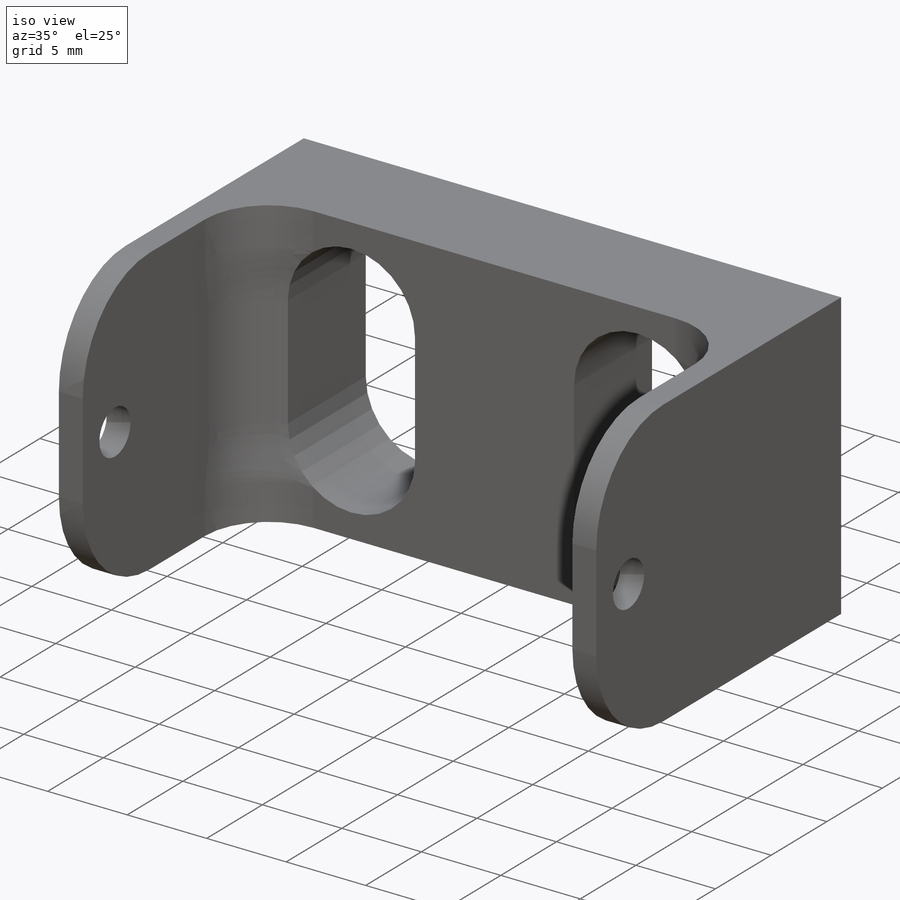
[diagram: iso view]
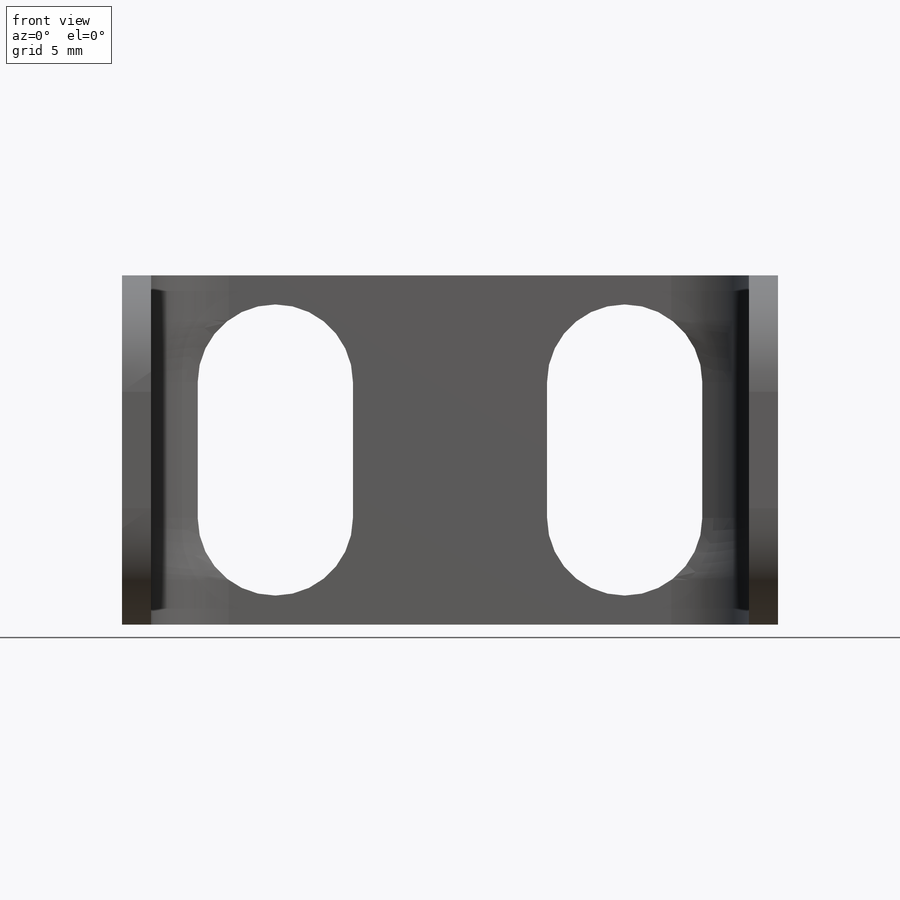
[diagram: front view]
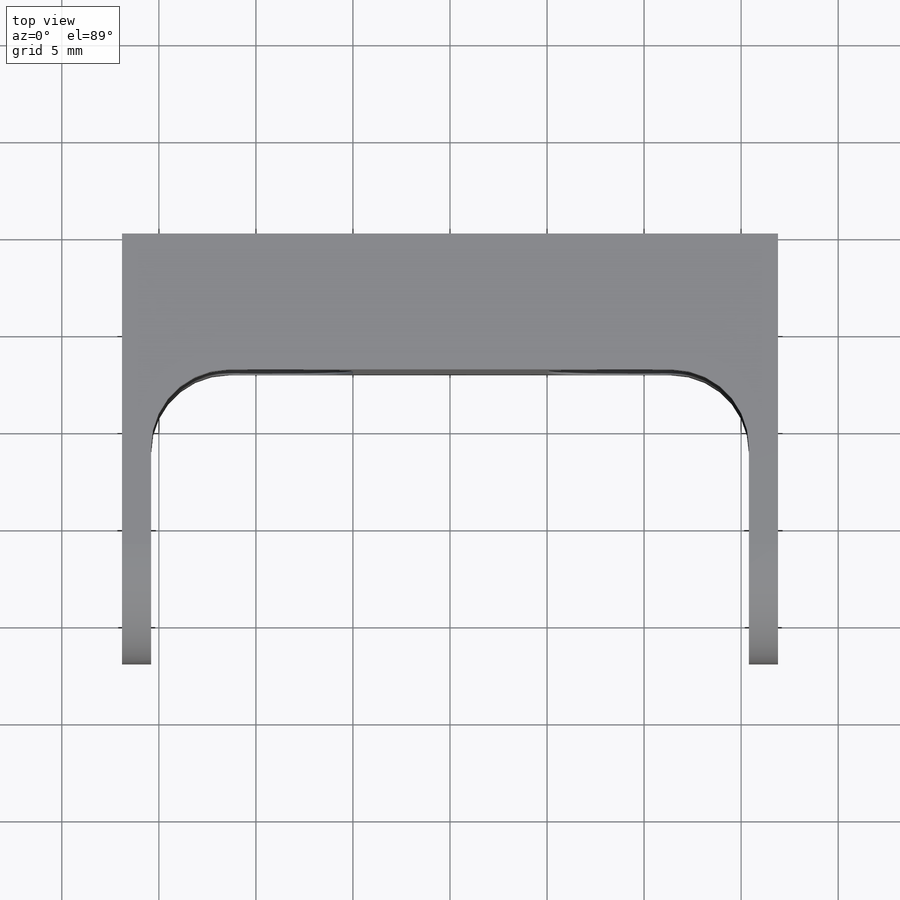
[diagram: top view]
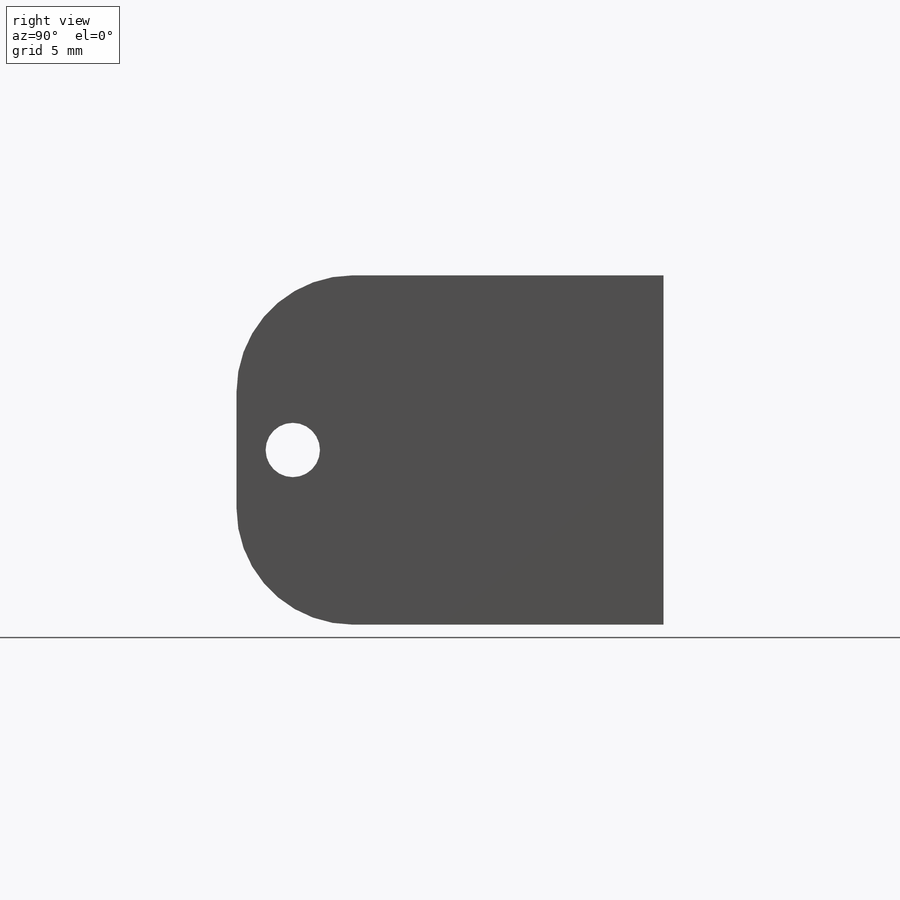
[diagram: right view]
SOLIDWORKS PART (.sldprt)
format: sldprt  version: not decoded by parser v0  size: 231,936 bytes
history: native  units: mm
features: sketch x3, extrude x2, fillet x2, material x1, cut_extrude x1 (+12 scaffold rows collapsed)
feature tree (21):
  scaffold x12  (default folders/planes/origin — collapsed)
  material  "Material <not specified>"
  sketch  "Sketch1"  dims[c1.D1=33.8mm c1.D2=18.0mm c1.D3=8.0mm c1.D4=7.0mm c1.D5=8.0mm c1.D6=7.0mm c1.D7=16.9mm c1.D8=4.45mm c2.D7=10.0mm c2.D8=5.0mm]
  extrude  "Boss-Extrude1"  Depth=7mm
  sketch  "Sketch2"  dims[D1=1.5mm D2=1.5mm]
  extrude  "Boss-Extrude2"  Depth=15mm
  sketch  "Sketch3"  dims[D1=2.8mm D2=2.9mm]
  cut_extrude  "Cut-Extrude1"  [1 undecoded]
  fillet  "Fillet1"  Radius=6mm
  fillet  "Fillet2"  Radius=4mm
decode coverage: 7 of 8 modeling features carry decoded parameters
note: 1 parameter value undecoded
note: suppression state not decoded; provenance and decode notes live in map.json
